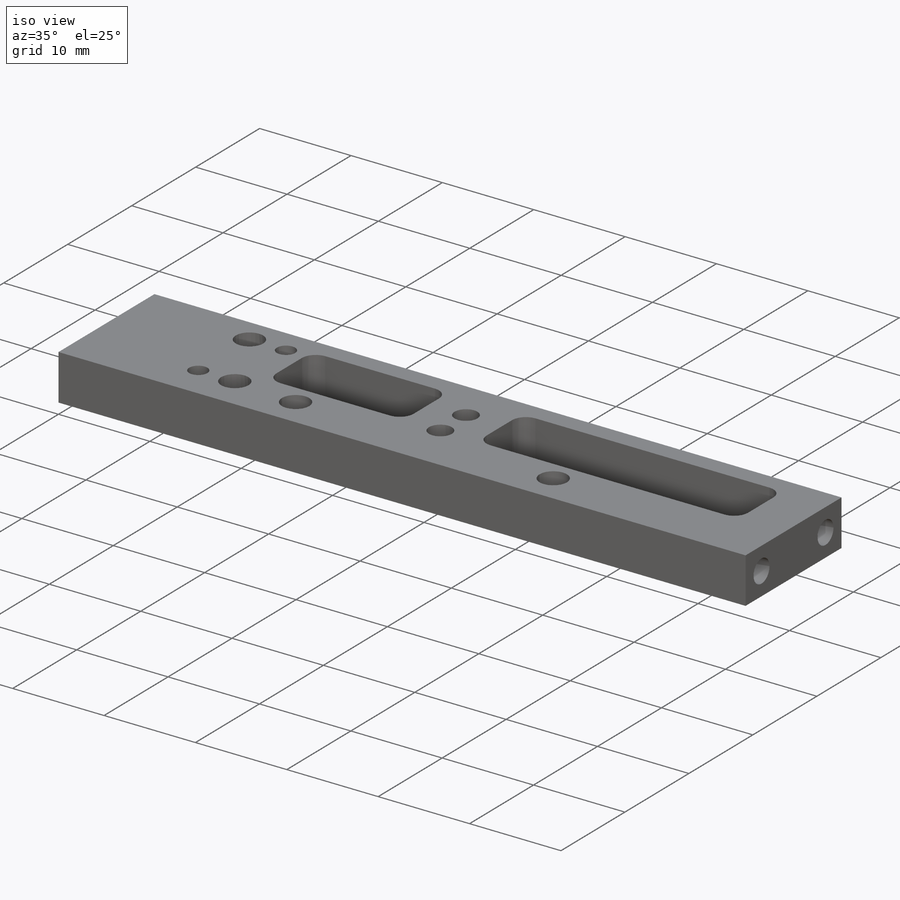
[diagram: iso view]
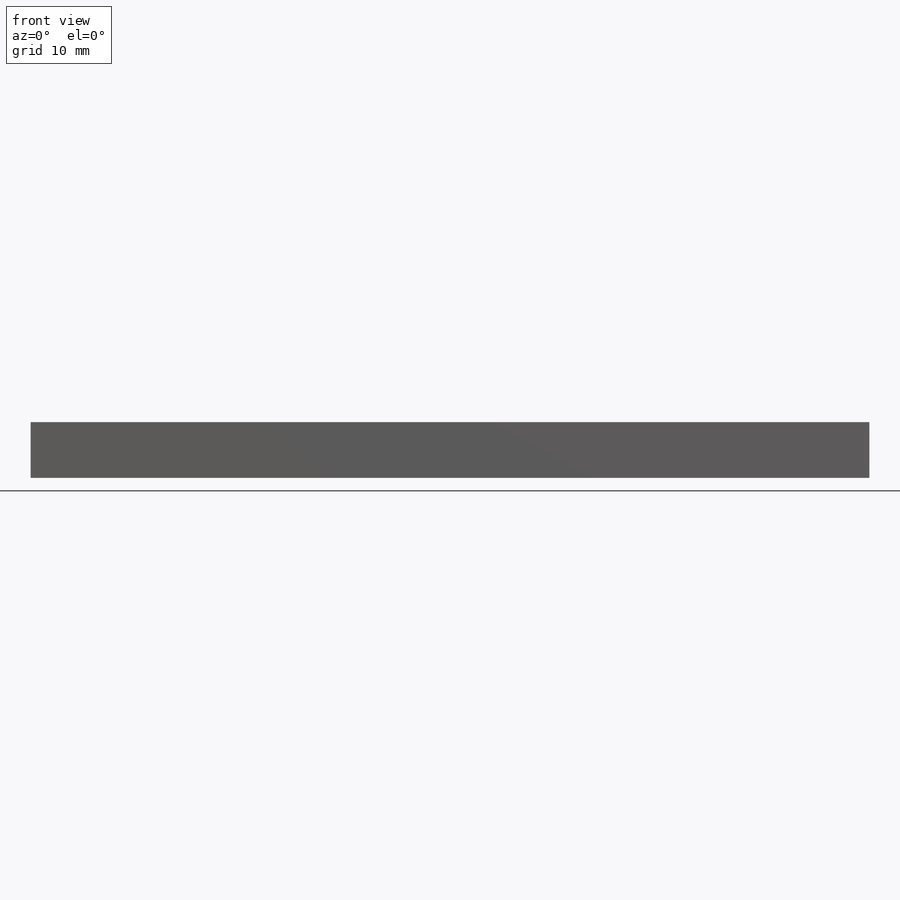
[diagram: front view]
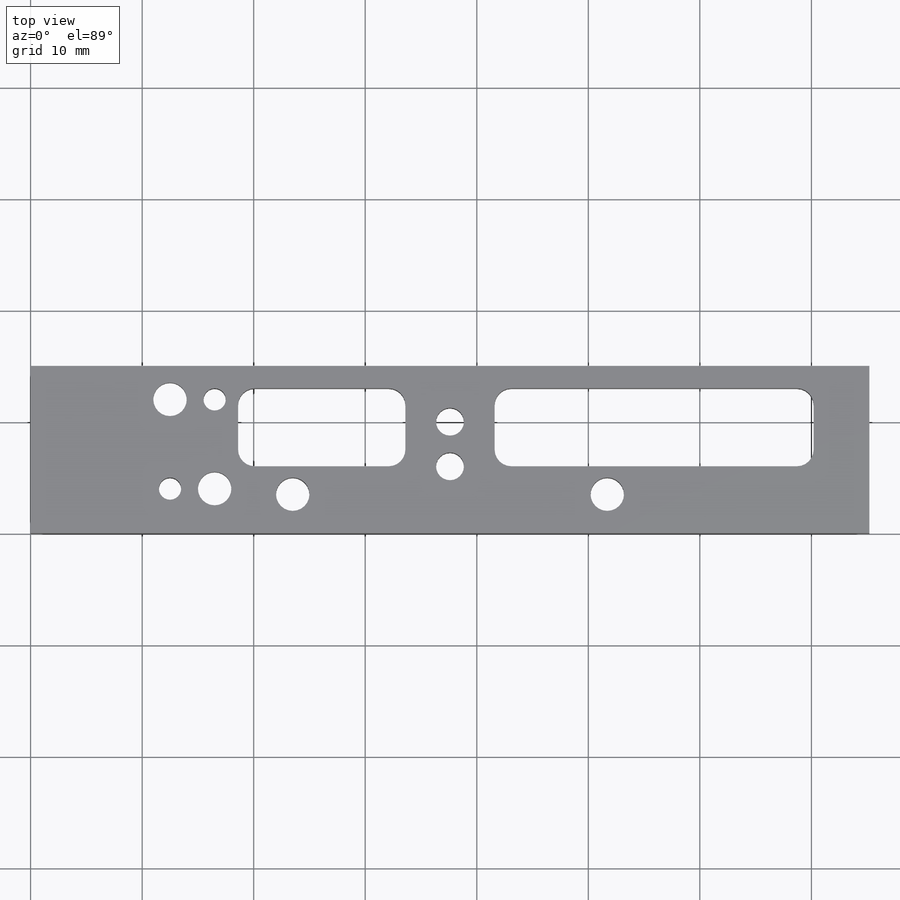
[diagram: top view]
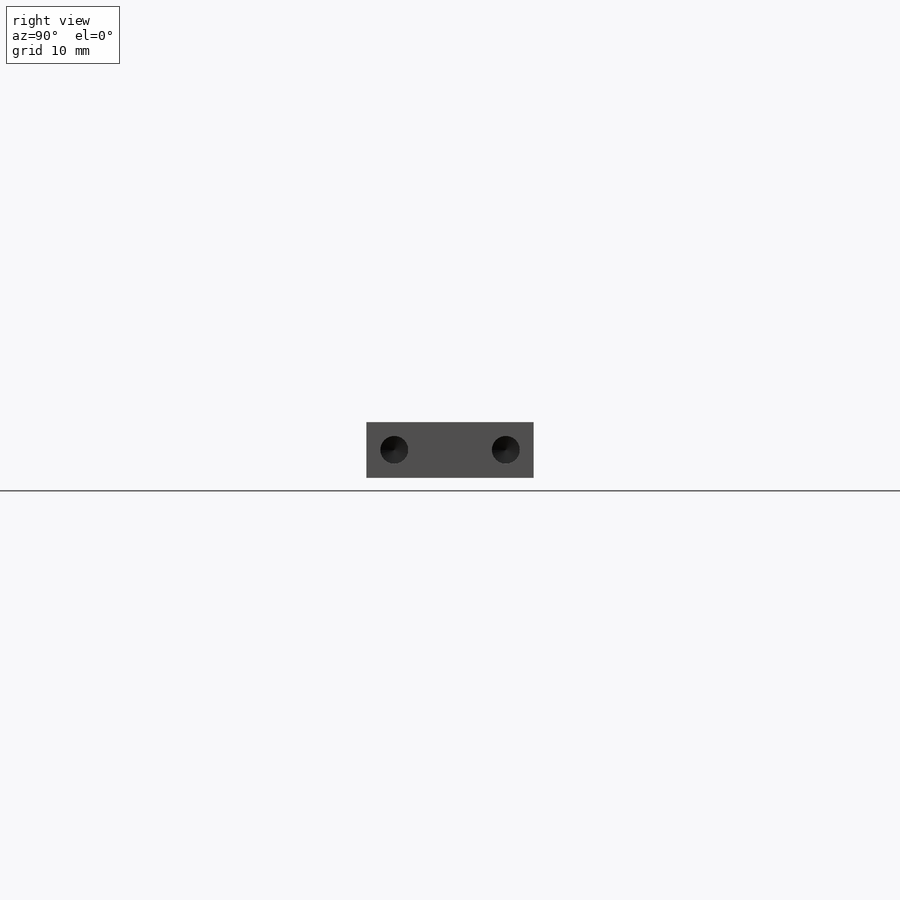
[diagram: right view]
SOLIDWORKS PART (.sldprt)
format: sldprt  version: not decoded by parser v0  size: 347,136 bytes
history: native  units: mm
features: sketch x8, hole x3, material x1, extrude x1, cut_extrude x1, fillet x1, chamfer x1 (+11 scaffold rows collapsed)
feature tree (27):
  scaffold x11  (default folders/planes/origin — collapsed)
  material  "Material <not specified>"
  sketch  "Sketch1"  dims[c1.D1=5.0mm c1.D2=14.0mm c1.D3=~11.933928mm c2.D3=120.0deg c2.D4=4.0mm c2.D1=15.0mm c2.D2=5.0mm]
  extrude  "Boss-Extrude1"  Depth=75.2mm
  hole  "Tap Drill for M3x0.5 Tap1"  Diameter=2.5mm Depth=3mm
  sketch  "Sketch3"  dims[D1=2.5mm D2=2.5mm D3=2.5mm D4=10.0mm D5=2.5mm]
  sketch  "Sketch2"  dims[hole-wizard template sketch: 47 standard entries collapsed; hole parameters kept: c15.Hole Depth=3.0mm c15.D3=~14.816244mm c15.Drill Angle=118.0deg]
  hole  "Tap Drill for M3x0.5 Tap2"  Diameter=2.5mm Depth=3mm
  sketch  "Sketch5"  dims[D1=2.5mm D2=2.5mm D3=10.0mm D4=2.5mm D5=2.5mm]
  sketch  "Sketch4"  dims[hole-wizard template sketch: 47 standard entries collapsed; hole parameters kept: c15.Hole Depth=3.0mm c15.D3=~14.816244mm c15.Drill Angle=118.0deg]
  sketch  "Sketch6"  dims[c1.D7=3.0mm c1.D8=2.0mm c1.D1=7.0mm c1.D2=2.0mm c1.D3=5.0mm c1.D4=15.0mm c1.D5=8.0mm c1.D6=28.6mm c1.D9=3.0mm c1.D10=11.5mm c1.D11=8.0mm c1.D12=23.5mm c1.D13=23.5mm c1.D14=4.0mm c1.D15=11.35mm c2.D3=4.0mm c2.D4=12.5mm c2.D5=8.0mm c2.D6=5.0mm c2.D14=15.0mm c2.D15=28.6mm]
  cut_extrude  "Cut-Extrude1"  [1 undecoded]
  fillet  "Fillet1"  Radius=1.5mm
  chamfer  "Chamfer1"  Distance=1.5mm Angle=45deg
  hole  "Tap Drill for M3x0.5 Tap3"  Diameter=2.5mm Depth=5mm
  sketch  "Sketch8"  dims[D1=37.6mm D2=9.0mm D3=4.0mm]
  sketch  "Sketch7"  dims[hole-wizard template sketch: 60 standard entries collapsed; hole parameters kept: c18.Thru Hole Depth=5.0mm]
decode coverage: 14 of 15 modeling features carry decoded parameters
note: ~ marks probable driven/reference dimensions
note: 1 parameter value undecoded
note: suppression state not decoded; provenance and decode notes live in map.json
